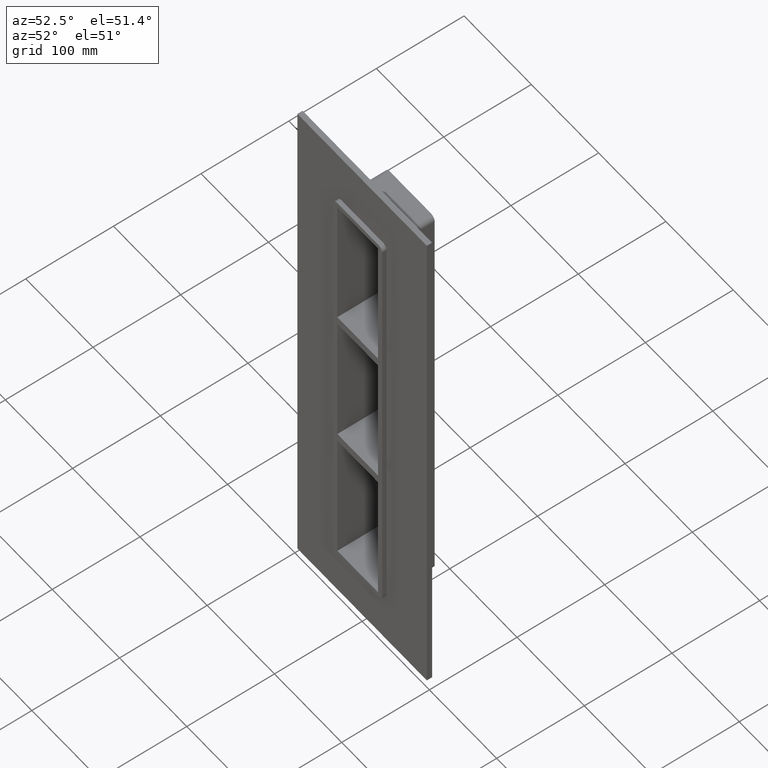
[diagram: clean part render]
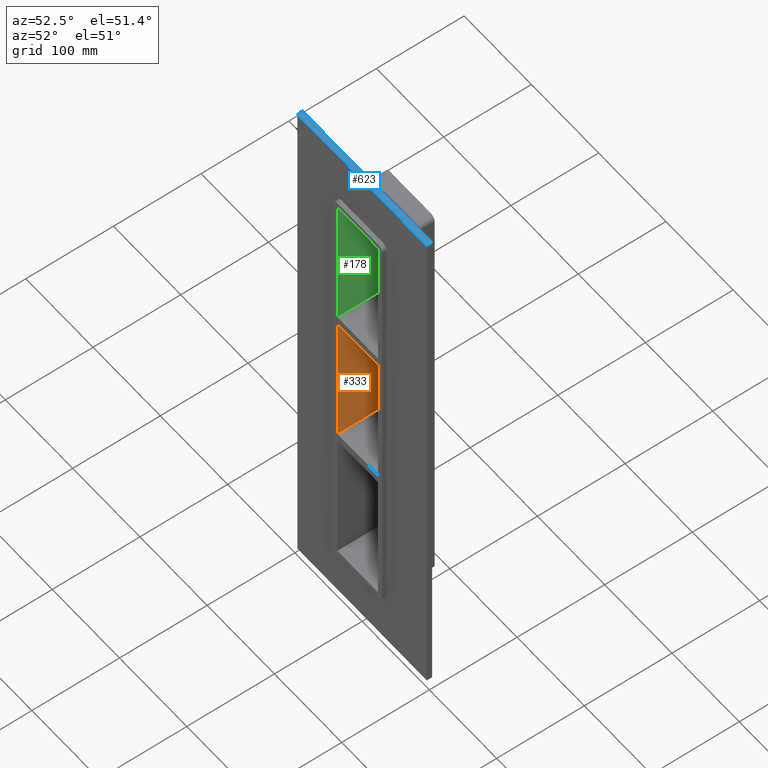
[diagram: same view with three faces highlighted in distinct colors, each labeled with its STEP entity id]
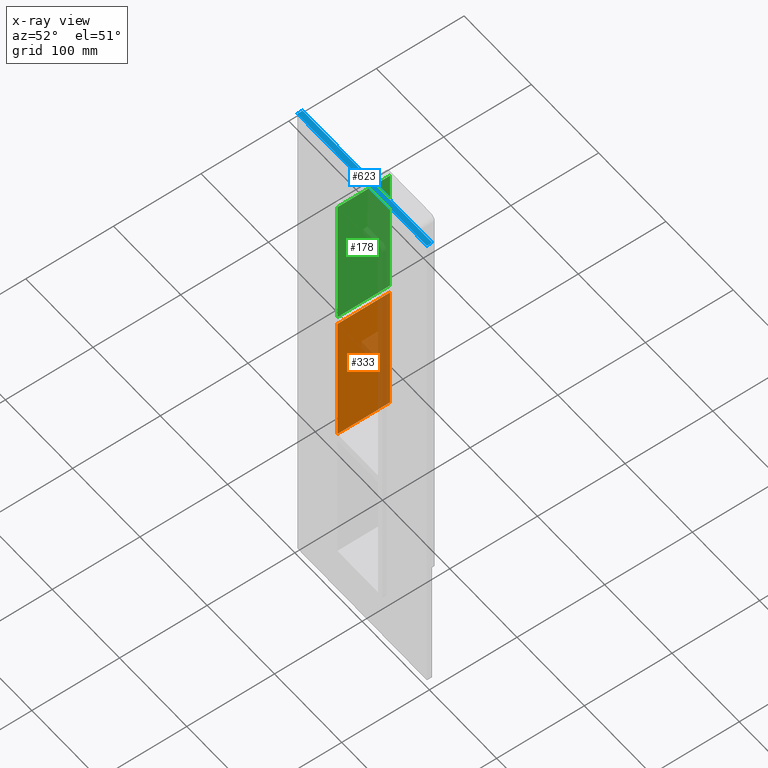
[diagram: x-ray of the same camera — body ghosted, the three highlighted faces saturated]
A machine part, auxiliary view with three faces highlighted in distinct colors.
The next image is the same camera in x-ray (body ghosted, the three faces saturated) — at least one of them is partly hidden behind the body in this view.
Their STEP definitions:

[orange] entity #333 — the highlighted planar face has unit normal (-1, 0, 0).
#75=CARTESIAN_POINT('',(-30.250000000001723,-5.0,79.749999999999801));
#76=VERTEX_POINT('',#75);
#83=CARTESIAN_POINT('',(-30.250000000001723,55.0,79.749999999999801));
#84=VERTEX_POINT('',#83);
#85=CARTESIAN_POINT('',(-30.249999999999986,55.0,79.749999999999801));
#86=DIRECTION('',(0.0,-1.0,0.0));
#87=VECTOR('',#86,60.0);
#88=LINE('',#85,#87);
#89=EDGE_CURVE('',#84,#76,#88,.T.);
#286=CARTESIAN_POINT('',(-30.249999999999986,-5.0,-79.749999999999915));
#287=VERTEX_POINT('',#286);
#295=CARTESIAN_POINT('',(-30.249999999999986,55.0,-79.749999999999915));
#296=VERTEX_POINT('',#295);
#303=CARTESIAN_POINT('',(-30.249999999999986,-5.0,-79.749999999999929));
#304=DIRECTION('',(0.0,1.0,0.0));
#305=VECTOR('',#304,60.0);
#306=LINE('',#303,#305);
#307=EDGE_CURVE('',#287,#296,#306,.T.);
#312=CARTESIAN_POINT('',(-30.249999999999986,0.0,-249.24999999999997));
#313=DIRECTION('',(-1.0,0.0,0.0));
#314=DIRECTION('',(0.0,0.0,1.0));
#315=AXIS2_PLACEMENT_3D('',#312,#313,#314);
#316=PLANE('',#315);
#317=ORIENTED_EDGE('',*,*,#89,.T.);
#318=CARTESIAN_POINT('',(-30.249999999999986,-5.0,-79.749999999999915));
#319=DIRECTION('',(0.0,0.0,1.0));
#320=VECTOR('',#319,159.49999999999972);
#321=LINE('',#318,#320);
#322=EDGE_CURVE('',#287,#76,#321,.T.);
#323=ORIENTED_EDGE('',*,*,#322,.F.);
#324=ORIENTED_EDGE('',*,*,#307,.T.);
#325=CARTESIAN_POINT('',(-30.249999999999986,55.0,79.749999999999787));
#326=DIRECTION('',(0.0,0.0,-1.0));
#327=VECTOR('',#326,159.49999999999972);
#328=LINE('',#325,#327);
#329=EDGE_CURVE('',#84,#296,#328,.T.);
#330=ORIENTED_EDGE('',*,*,#329,.F.);
#331=EDGE_LOOP('',(#317,#323,#324,#330));
#332=FACE_OUTER_BOUND('',#331,.T.);
#333=ADVANCED_FACE('',(#332),#316,.F.);

[blue] entity #623 — the highlighted planar face has unit normal (0, 0, 1).
#380=CARTESIAN_POINT('',(-96.25,6.000000000000001,315.25));
#381=VERTEX_POINT('',#380);
#388=CARTESIAN_POINT('',(96.25,6.000000000000001,315.25));
#389=VERTEX_POINT('',#388);
#390=CARTESIAN_POINT('',(-96.25,6.000000000000001,315.25));
#391=DIRECTION('',(1.0,0.0,0.0));
#392=VECTOR('',#391,192.5);
#393=LINE('',#390,#392);
#394=EDGE_CURVE('',#381,#389,#393,.T.);
#490=CARTESIAN_POINT('',(96.25,0.0,315.25));
#491=VERTEX_POINT('',#490);
#498=CARTESIAN_POINT('',(-96.25,0.0,315.25));
#499=VERTEX_POINT('',#498);
#500=CARTESIAN_POINT('',(-96.25,0.0,315.25));
#501=DIRECTION('',(1.0,0.0,0.0));
#502=VECTOR('',#501,192.5);
#503=LINE('',#500,#502);
#504=EDGE_CURVE('',#499,#491,#503,.T.);
#598=CARTESIAN_POINT('',(96.25,0.0,315.25));
#599=DIRECTION('',(0.0,1.0,0.0));
#600=VECTOR('',#599,6.000000000000001);
#601=LINE('',#598,#600);
#602=EDGE_CURVE('',#491,#389,#601,.T.);
#607=CARTESIAN_POINT('',(-96.25,0.0,315.25));
#608=DIRECTION('',(0.0,0.0,1.0));
#609=DIRECTION('',(1.0,0.0,0.0));
#610=AXIS2_PLACEMENT_3D('',#607,#608,#609);
#611=PLANE('',#610);
#612=ORIENTED_EDGE('',*,*,#504,.T.);
#613=ORIENTED_EDGE('',*,*,#602,.T.);
#614=ORIENTED_EDGE('',*,*,#394,.F.);
#615=CARTESIAN_POINT('',(-96.25,0.0,315.25));
#616=DIRECTION('',(0.0,1.0,0.0));
#617=VECTOR('',#616,6.000000000000001);
#618=LINE('',#615,#617);
#619=EDGE_CURVE('',#499,#381,#618,.T.);
#620=ORIENTED_EDGE('',*,*,#619,.F.);
#621=EDGE_LOOP('',(#612,#613,#614,#620));
#622=FACE_OUTER_BOUND('',#621,.T.);
#623=ADVANCED_FACE('',(#622),#611,.T.);

[green] entity #178 — the highlighted planar face has unit normal (-1, 0, 0).
#113=CARTESIAN_POINT('',(-30.249999999999986,-5.0,89.750000000000114));
#114=VERTEX_POINT('',#113);
#131=CARTESIAN_POINT('',(-30.249999999999986,55.0,89.750000000000114));
#132=VERTEX_POINT('',#131);
#139=CARTESIAN_POINT('',(-30.249999999999986,-5.0,89.750000000000099));
#140=DIRECTION('',(0.0,1.0,0.0));
#141=VECTOR('',#140,60.0);
#142=LINE('',#139,#141);
#143=EDGE_CURVE('',#114,#132,#142,.T.);
#148=CARTESIAN_POINT('',(-30.249999999999986,0.0,-249.24999999999997));
#149=DIRECTION('',(-1.0,0.0,0.0));
#150=DIRECTION('',(0.0,0.0,1.0));
#151=AXIS2_PLACEMENT_3D('',#148,#149,#150);
#152=PLANE('',#151);
#153=ORIENTED_EDGE('',*,*,#143,.T.);
#154=CARTESIAN_POINT('',(-30.249999999999986,55.0,249.24999999999997));
#155=VERTEX_POINT('',#154);
#156=CARTESIAN_POINT('',(-30.249999999999986,55.0,249.24999999999994));
#157=DIRECTION('',(0.0,0.0,-1.0));
#158=VECTOR('',#157,159.49999999999983);
#159=LINE('',#156,#158);
#160=EDGE_CURVE('',#155,#132,#159,.T.);
#161=ORIENTED_EDGE('',*,*,#160,.F.);
#162=CARTESIAN_POINT('',(-30.249999999999986,-5.0,249.24999999999997));
#163=VERTEX_POINT('',#162);
#164=CARTESIAN_POINT('',(-30.249999999999986,-5.0,249.25));
#165=DIRECTION('',(0.0,1.0,0.0));
#166=VECTOR('',#165,60.0);
#167=LINE('',#164,#166);
#168=EDGE_CURVE('',#163,#155,#167,.T.);
#169=ORIENTED_EDGE('',*,*,#168,.F.);
#170=CARTESIAN_POINT('',(-30.249999999999986,-5.0,89.750000000000128));
#171=DIRECTION('',(0.0,0.0,1.0));
#172=VECTOR('',#171,159.49999999999983);
#173=LINE('',#170,#172);
#174=EDGE_CURVE('',#114,#163,#173,.T.);
#175=ORIENTED_EDGE('',*,*,#174,.F.);
#176=EDGE_LOOP('',(#153,#161,#169,#175));
#177=FACE_OUTER_BOUND('',#176,.T.);
#178=ADVANCED_FACE('',(#177),#152,.F.);